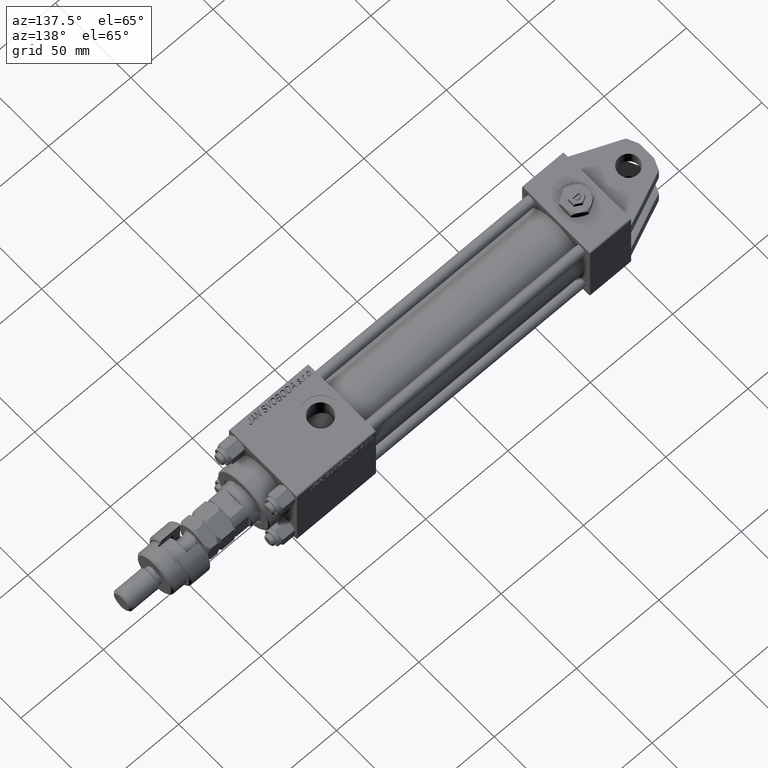
[diagram: clean part render]
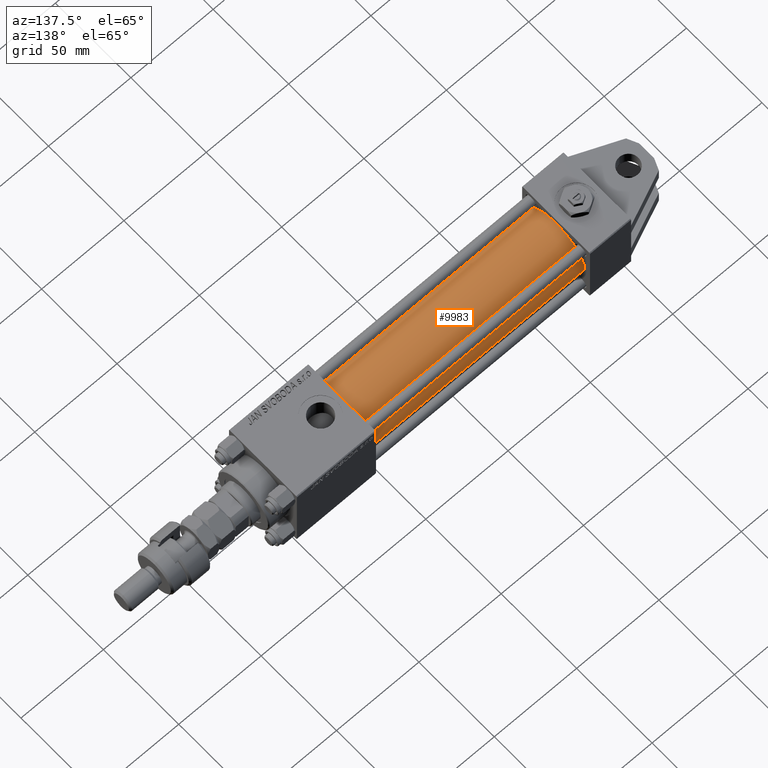
[diagram: same view with one face highlighted and labeled with its STEP entity id]
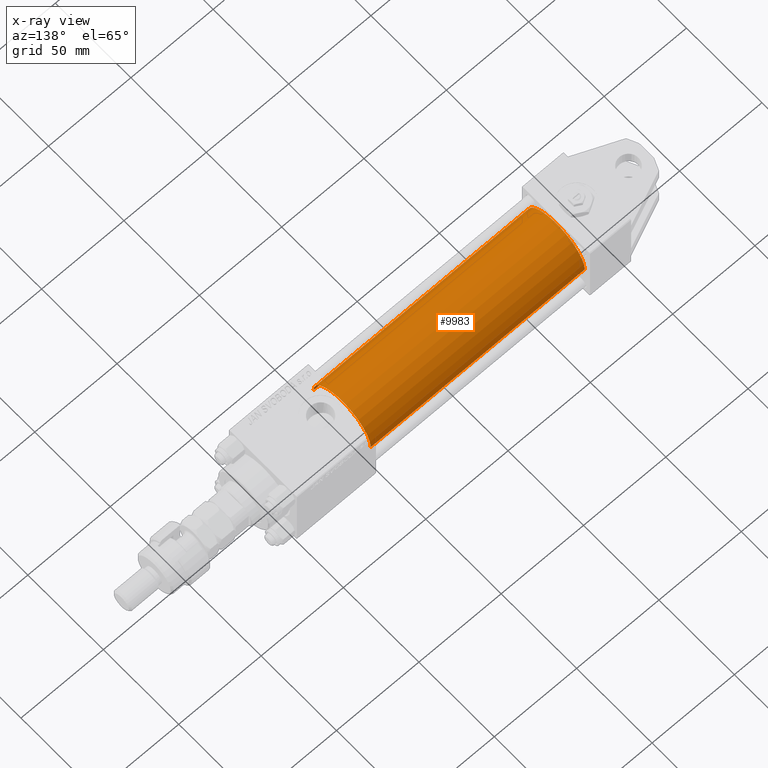
[diagram: x-ray of the same camera — body ghosted, the highlighted face saturated]
A machine part, auxiliary view. The second image highlights one B-rep face of the part: STEP entity #9983.
The next image is the same camera in x-ray: the body ghosted, the highlighted face saturated — about 0% of this face is hidden behind the body in this view.
In plain terms, the highlighted cylindrical surface (partial cylindrical patch) has radius 19 mm, axis along (-1, -0, 0).
Its self-contained STEP definition (entity closure, byte-faithful):
#1587 = VERTEX_POINT ( 'NONE', #14924 ) ;
#1890 = ORIENTED_EDGE ( 'NONE', *, *, #25407, .F. ) ;
#4263 = DIRECTION ( 'NONE',  ( 0.000000000000000000, 0.000000000000000000, -1.000000000000000000 ) ) ;
#5933 = EDGE_CURVE ( 'NONE', #1587, #7842, #29449, .T. ) ;
#5983 = LINE ( 'NONE', #10108, #21320 ) ;
#7213 = EDGE_CURVE ( 'NONE', #35203, #20874, #10128, .T. ) ;
#7270 = DIRECTION ( 'NONE',  ( 1.000000000000000000, -0.000000000000000000, 0.000000000000000000 ) ) ;
#7622 = CARTESIAN_POINT ( 'NONE',  ( 155.0000000000000000, -1.142618033573643218E-15, -19.00000000000000000 ) ) ;
#7842 = VERTEX_POINT ( 'NONE', #7622 ) ;
#8929 = DIRECTION ( 'NONE',  ( 1.000000000000000000, 0.000000000000000000, 0.000000000000000000 ) ) ;
#9374 = AXIS2_PLACEMENT_3D ( 'NONE', #27455, #53343, #40116 ) ;
#9983 = ADVANCED_FACE ( 'NONE', ( #31570 ), #48395, .T. ) ;
#10108 = CARTESIAN_POINT ( 'NONE',  ( 155.0000000000000000, -1.142618033573643218E-15, -19.00000000000000000 ) ) ;
#10128 = CIRCLE ( 'NONE', #40933, 19.00000000000000000 ) ;
#10863 = ORIENTED_EDGE ( 'NONE', *, *, #5933, .F. ) ;
#14924 = CARTESIAN_POINT ( 'NONE',  ( 155.0000000000000000, -3.469446951953614189E-15, 19.00000000000000000 ) ) ;
#16509 = LINE ( 'NONE', #34304, #36714 ) ;
#17476 = CARTESIAN_POINT ( 'NONE',  ( 155.0000000000000000, -3.469446951953614189E-15, 0.000000000000000000 ) ) ;
#18819 = EDGE_LOOP ( 'NONE', ( #1890, #10863, #41853, #44739 ) ) ;
#20219 = CARTESIAN_POINT ( 'NONE',  ( 24.99999999999999289, -3.469446951953614189E-15, 0.000000000000000000 ) ) ;
#20484 = CARTESIAN_POINT ( 'NONE',  ( 24.99999999999999289, -3.469446951953614189E-15, 19.00000000000000000 ) ) ;
#20874 = VERTEX_POINT ( 'NONE', #21264 ) ;
#21264 = CARTESIAN_POINT ( 'NONE',  ( 24.99999999999999289, -1.142618033573643218E-15, -19.00000000000000000 ) ) ;
#21320 = VECTOR ( 'NONE', #22786, 1000.000000000000000 ) ;
#22786 = DIRECTION ( 'NONE',  ( -1.000000000000000000, -0.000000000000000000, -0.000000000000000000 ) ) ;
#24088 = DIRECTION ( 'NONE',  ( 0.000000000000000000, 0.000000000000000000, 1.000000000000000000 ) ) ;
#25407 = EDGE_CURVE ( 'NONE', #7842, #20874, #5983, .T. ) ;
#27455 = CARTESIAN_POINT ( 'NONE',  ( 155.0000000000000000, -3.469446951953614189E-15, 0.000000000000000000 ) ) ;
#28589 = AXIS2_PLACEMENT_3D ( 'NONE', #17476, #8929, #4263 ) ;
#29449 = CIRCLE ( 'NONE', #28589, 19.00000000000000000 ) ;
#31570 = FACE_OUTER_BOUND ( 'NONE', #18819, .T. ) ;
#34304 = CARTESIAN_POINT ( 'NONE',  ( 155.0000000000000000, -3.469446951953614189E-15, 19.00000000000000000 ) ) ;
#35203 = VERTEX_POINT ( 'NONE', #20484 ) ;
#35981 = EDGE_CURVE ( 'NONE', #1587, #35203, #16509, .T. ) ;
#36714 = VECTOR ( 'NONE', #50142, 1000.000000000000000 ) ;
#40116 = DIRECTION ( 'NONE',  ( 0.000000000000000000, 0.000000000000000000, 1.000000000000000000 ) ) ;
#40933 = AXIS2_PLACEMENT_3D ( 'NONE', #20219, #7270, #24088 ) ;
#41853 = ORIENTED_EDGE ( 'NONE', *, *, #35981, .T. ) ;
#44739 = ORIENTED_EDGE ( 'NONE', *, *, #7213, .T. ) ;
#48395 = CYLINDRICAL_SURFACE ( 'NONE', #9374, 19.00000000000000000 ) ;
#50142 = DIRECTION ( 'NONE',  ( -1.000000000000000000, -0.000000000000000000, -0.000000000000000000 ) ) ;
#53343 = DIRECTION ( 'NONE',  ( -1.000000000000000000, -0.000000000000000000, -0.000000000000000000 ) ) ;